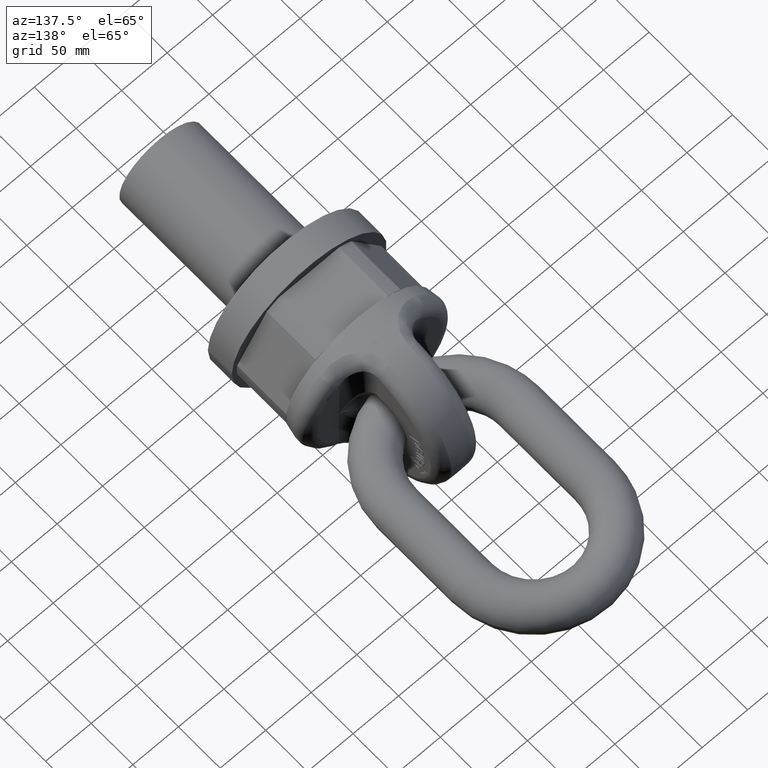
[diagram: clean part render]
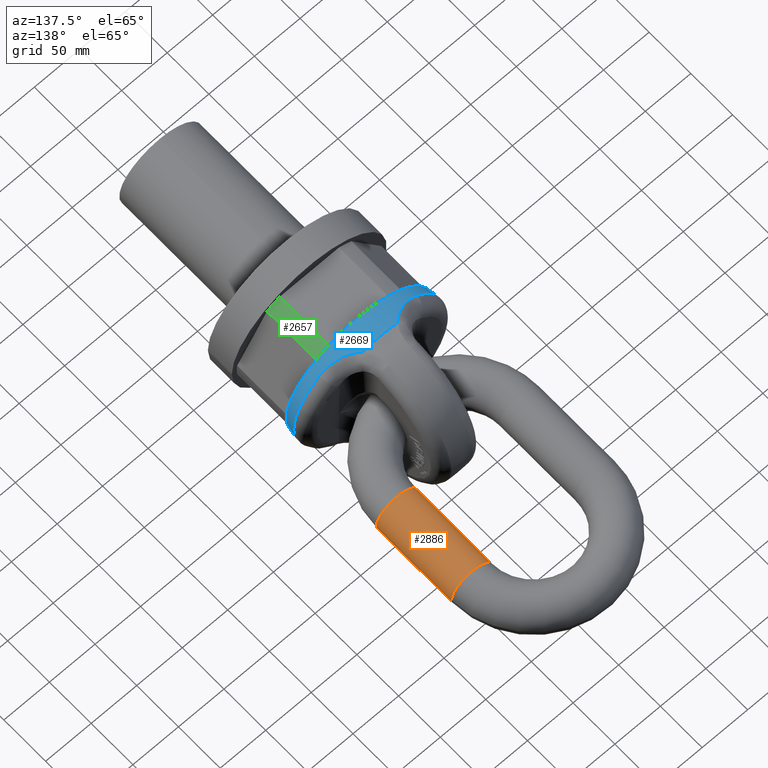
[diagram: same view with three faces highlighted in distinct colors, each labeled with its STEP entity id]
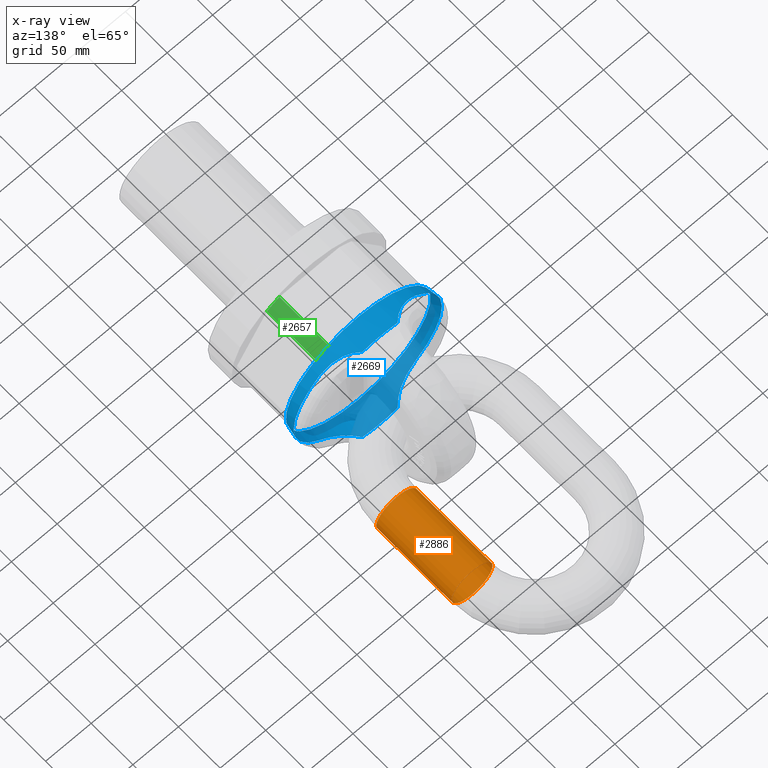
[diagram: x-ray of the same camera — body ghosted, the three highlighted faces saturated]
A machine part, auxiliary view with three faces highlighted in distinct colors.
The next image is the same camera in x-ray (body ghosted, the three faces saturated) — at least one of them is partly hidden behind the body in this view.
Their STEP definitions:

[orange] entity #2886 — the highlighted cylindrical surface (bore or boss wall) has radius 22.5 mm, axis along (0, 1, 0).
#2040=CYLINDRICAL_SURFACE('',#5807,22.5);
#2886=ADVANCED_FACE('',(#3061,#3062),#2040,.T.);
#3061=FACE_BOUND('',#3347,.T.);
#3062=FACE_BOUND('',#3348,.T.);
#3347=EDGE_LOOP('',(#4539));
#3348=EDGE_LOOP('',(#4540));
#4539=ORIENTED_EDGE('',*,*,#5535,.F.);
#4540=ORIENTED_EDGE('',*,*,#5536,.T.);
#4939=VERTEX_POINT('',#9879);
#4940=VERTEX_POINT('',#9882);
#5535=EDGE_CURVE('',#4939,#4939,#5601,.T.);
#5536=EDGE_CURVE('',#4940,#4940,#5602,.T.);
#5601=CIRCLE('',#5804,22.5);
#5602=CIRCLE('',#5806,22.5);
#5804=AXIS2_PLACEMENT_3D('',#9878,#6559,#6560);
#5806=AXIS2_PLACEMENT_3D('',#9881,#6563,#6564);
#5807=AXIS2_PLACEMENT_3D('',#9883,#6565,#6566);
#6559=DIRECTION('',(-3.15796771448933E-16,-1.,0.));
#6560=DIRECTION('',(1.,0.,0.));
#6563=DIRECTION('',(-3.15796771448933E-16,-1.,0.));
#6564=DIRECTION('',(1.,0.,0.));
#6565=DIRECTION('',(3.15796771448933E-16,1.,0.));
#6566=DIRECTION('',(-1.,0.,0.));
#9878=CARTESIAN_POINT('',(67.5,208.,0.));
#9879=CARTESIAN_POINT('',(90.,208.,0.));
#9881=CARTESIAN_POINT('',(67.5000000000001,298.,0.));
#9882=CARTESIAN_POINT('',(90.0000000000001,298.,0.));
#9883=CARTESIAN_POINT('',(67.5,208.,0.));

[blue] entity #2669 — the highlighted conical surface has half-angle 9.411 deg.
#357=B_SPLINE_CURVE_WITH_KNOTS('',3,(#7036,#7037,#7038,#7039,#7040,#7041,
#7042,#7043,#7044,#7045),.UNSPECIFIED.,.F.,.F.,(4,2,2,2,4),(0.,0.25,0.5,
0.75,1.),.UNSPECIFIED.);
#358=B_SPLINE_CURVE_WITH_KNOTS('',3,(#7050,#7051,#7052,#7053,#7054,#7055,
#7056,#7057,#7058,#7059),.UNSPECIFIED.,.F.,.F.,(4,2,2,2,4),(0.,0.25,0.5,
0.75,1.),.UNSPECIFIED.);
#359=B_SPLINE_CURVE_WITH_KNOTS('',3,(#7063,#7064,#7065,#7066,#7067,#7068,
#7069,#7070,#7071,#7072),.UNSPECIFIED.,.F.,.F.,(4,2,2,2,4),(0.,0.25,0.5,
0.75,1.),.UNSPECIFIED.);
#360=B_SPLINE_CURVE_WITH_KNOTS('',3,(#7076,#7077,#7078,#7079,#7080,#7081,
#7082,#7083,#7084,#7085),.UNSPECIFIED.,.F.,.F.,(4,2,2,2,4),(0.,0.25,0.5,
0.75,1.),.UNSPECIFIED.);
#1795=CONICAL_SURFACE('',#5657,79.5299995808709,9.41056020832929);
#2669=ADVANCED_FACE('',(#3016,#3017),#1795,.T.);
#3016=FACE_BOUND('',#3104,.T.);
#3017=FACE_BOUND('',#3105,.T.);
#3104=EDGE_LOOP('',(#3521));
#3105=EDGE_LOOP('',(#3522,#3523,#3524,#3525,#3526,#3527,#3528,#3529));
#3521=ORIENTED_EDGE('',*,*,#5066,.F.);
#3522=ORIENTED_EDGE('',*,*,#5067,.T.);
#3523=ORIENTED_EDGE('',*,*,#5068,.T.);
#3524=ORIENTED_EDGE('',*,*,#5069,.T.);
#3525=ORIENTED_EDGE('',*,*,#5070,.T.);
#3526=ORIENTED_EDGE('',*,*,#5071,.T.);
#3527=ORIENTED_EDGE('',*,*,#5072,.T.);
#3528=ORIENTED_EDGE('',*,*,#5073,.T.);
#3529=ORIENTED_EDGE('',*,*,#5074,.T.);
#4653=VERTEX_POINT('',#7035);
#4654=VERTEX_POINT('',#7046);
#4655=VERTEX_POINT('',#7047);
#4656=VERTEX_POINT('',#7049);
#4657=VERTEX_POINT('',#7060);
#4658=VERTEX_POINT('',#7062);
#4659=VERTEX_POINT('',#7073);
#4660=VERTEX_POINT('',#7075);
#4661=VERTEX_POINT('',#7086);
#5066=EDGE_CURVE('',#4653,#4653,#5561,.T.);
#5067=EDGE_CURVE('',#4654,#4655,#357,.T.);
#5068=EDGE_CURVE('',#4655,#4656,#5562,.T.);
#5069=EDGE_CURVE('',#4656,#4657,#358,.T.);
#5070=EDGE_CURVE('',#4657,#4658,#5563,.T.);
#5071=EDGE_CURVE('',#4658,#4659,#359,.T.);
#5072=EDGE_CURVE('',#4659,#4660,#5564,.T.);
#5073=EDGE_CURVE('',#4660,#4661,#360,.T.);
#5074=EDGE_CURVE('',#4661,#4654,#5565,.T.);
#5561=CIRCLE('',#5652,79.5299995808709);
#5562=CIRCLE('',#5653,83.8560735849427);
#5563=CIRCLE('',#5654,81.4287227618614);
#5564=CIRCLE('',#5655,83.8560735849427);
#5565=CIRCLE('',#5656,81.4287227618614);
#5652=AXIS2_PLACEMENT_3D('',#7034,#5967,#5968);
#5653=AXIS2_PLACEMENT_3D('',#7048,#5969,#5970);
#5654=AXIS2_PLACEMENT_3D('',#7061,#5971,#5972);
#5655=AXIS2_PLACEMENT_3D('',#7074,#5973,#5974);
#5656=AXIS2_PLACEMENT_3D('',#7087,#5975,#5976);
#5657=AXIS2_PLACEMENT_3D('',#7088,#5977,#5978);
#5967=DIRECTION('',(0.,-1.,0.));
#5968=DIRECTION('',(0.,0.,-1.));
#5969=DIRECTION('',(0.,-1.,0.));
#5970=DIRECTION('',(0.,0.,-1.));
#5971=DIRECTION('',(2.22044604925031E-16,-1.,0.));
#5972=DIRECTION('',(1.,1.70428656340344E-16,0.));
#5973=DIRECTION('',(0.,-1.,0.));
#5974=DIRECTION('',(0.,0.,-1.));
#5975=DIRECTION('',(-2.22044604925031E-16,-1.,-5.2023068723207E-31));
#5976=DIRECTION('',(-1.,1.70428656340344E-16,-2.34291072916505E-15));
#5977=DIRECTION('',(0.,1.,0.));
#5978=DIRECTION('',(0.,3.39492421331075E-16,1.));
#7034=CARTESIAN_POINT('',(0.,88.,0.));
#7035=CARTESIAN_POINT('',(0.,88.,-79.5299995808709));
#7036=CARTESIAN_POINT('',(-53.0311782348249,99.4561525627352,-61.7926454010048));
#7037=CARTESIAN_POINT('',(-50.2915803342574,99.4561525627352,-64.1438006819273));
#7038=CARTESIAN_POINT('',(-47.4498870520396,99.685371766462,-66.3168204155845));
#7039=CARTESIAN_POINT('',(-41.5993527415988,100.72746128075,-70.3354607524262));
#7040=CARTESIAN_POINT('',(-38.5772171287843,101.550105876451,-72.1837020846384));
#7041=CARTESIAN_POINT('',(-32.6594419392754,103.872872415963,-75.4662854746882));
#7042=CARTESIAN_POINT('',(-29.7016012291098,105.398714454132,-76.9349842280731));
#7043=CARTESIAN_POINT('',(-24.1801032292451,109.192629330798,-79.5018100040834));
#7044=CARTESIAN_POINT('',(-21.6270886623688,111.437769483635,-80.5983860643944));
#7045=CARTESIAN_POINT('',(-19.3766860398297,114.101837426599,-81.5866724115967));
#7046=CARTESIAN_POINT('',(-53.0311782348249,99.4561525627352,-61.7926454010048));
#7047=CARTESIAN_POINT('',(-19.3766860398297,114.101837426599,-81.5866724115967));
#7048=CARTESIAN_POINT('',(0.,114.101837426599,0.));
#7049=CARTESIAN_POINT('',(19.3766860398299,114.101837426599,-81.5866724115967));
#7050=CARTESIAN_POINT('',(19.3766860398299,114.101837426599,-81.5866724115967));
#7051=CARTESIAN_POINT('',(21.6283781201483,111.436242999841,-80.5978197863844));
#7052=CARTESIAN_POINT('',(24.2253527224758,109.154343316455,-79.4820490104423));
#7053=CARTESIAN_POINT('',(29.7763963306913,105.354673195505,-76.8989112328579));
#7054=CARTESIAN_POINT('',(32.6758694393554,103.865213788061,-75.4577326038359));
#7055=CARTESIAN_POINT('',(38.5908230937063,101.545982331194,-72.1755925779134));
#7056=CARTESIAN_POINT('',(41.6201128180055,100.723015460115,-70.3217918618348));
#7057=CARTESIAN_POINT('',(47.4527084914976,99.6856203090327,-66.3142891388219));
#7058=CARTESIAN_POINT('',(50.2909280959429,99.4561525627352,-64.1443604405537));
#7059=CARTESIAN_POINT('',(53.031178234825,99.4561525627352,-61.7926454010047));
#7060=CARTESIAN_POINT('',(53.031178234825,99.4561525627352,-61.7926454010047));
#7061=CARTESIAN_POINT('',(0.,99.4561525627352,0.));
#7062=CARTESIAN_POINT('',(53.031178234825,99.4561525627352,61.7926454010047));
#7063=CARTESIAN_POINT('',(53.031178234825,99.4561525627352,61.7926454010047));
#7064=CARTESIAN_POINT('',(50.2915803342576,99.4561525627352,64.1438006819273));
#7065=CARTESIAN_POINT('',(47.4498870520398,99.6853717664619,66.3168204155844));
#7066=CARTESIAN_POINT('',(41.599352741599,100.72746128075,70.3354607524261));
#7067=CARTESIAN_POINT('',(38.5772171287845,101.550105876451,72.1837020846383));
#7068=CARTESIAN_POINT('',(32.6594419392756,103.872872415963,75.4662854746881));
#7069=CARTESIAN_POINT('',(29.70160122911,105.398714454132,76.934984228073));
#7070=CARTESIAN_POINT('',(24.1801032292453,109.192629330798,79.5018100040834));
#7071=CARTESIAN_POINT('',(21.627088662369,111.437769483635,80.5983860643943));
#7072=CARTESIAN_POINT('',(19.3766860398299,114.101837426599,81.5866724115967));
#7073=CARTESIAN_POINT('',(19.3766860398299,114.101837426599,81.5866724115967));
#7074=CARTESIAN_POINT('',(0.,114.101837426599,0.));
#7075=CARTESIAN_POINT('',(-19.3766860398301,114.101837426599,81.5866724115966));
#7076=CARTESIAN_POINT('',(-19.3766860398301,114.101837426599,81.5866724115966));
#7077=CARTESIAN_POINT('',(-21.6283781201485,111.436242999841,80.5978197863844));
#7078=CARTESIAN_POINT('',(-24.225352722476,109.154343316455,79.4820490104422));
#7079=CARTESIAN_POINT('',(-29.7763963306915,105.354673195505,76.8989112328578));
#7080=CARTESIAN_POINT('',(-32.6758694393556,103.865213788061,75.4577326038358));
#7081=CARTESIAN_POINT('',(-38.5908230937065,101.545982331194,72.1755925779133));
#7082=CARTESIAN_POINT('',(-41.6201128180057,100.723015460115,70.3217918618347));
#7083=CARTESIAN_POINT('',(-47.4527084914978,99.6856203090327,66.3142891388218));
#7084=CARTESIAN_POINT('',(-50.2909280959431,99.4561525627352,64.1443604405536));
#7085=CARTESIAN_POINT('',(-53.0311782348252,99.4561525627352,61.7926454010046));
#7086=CARTESIAN_POINT('',(-53.0311782348252,99.4561525627352,61.7926454010046));
#7087=CARTESIAN_POINT('',(0.,99.4561525627352,0.));
#7088=CARTESIAN_POINT('',(0.,88.,0.));

[green] entity #2657 — the highlighted cylindrical surface (partial cylindrical patch) has radius 79.53 mm, axis along (-0, 1, 0).
#1815=FACE_OUTER_BOUND('',#3080,.T.);
#2023=CYLINDRICAL_SURFACE('',#5632,79.5299995808709);
#2059=LINE('',#6629,#2315);
#2063=LINE('',#6637,#2319);
#2315=VECTOR('',#5863,1.);
#2319=VECTOR('',#5869,1.);
#2657=ADVANCED_FACE('',(#1815),#2023,.T.);
#3080=EDGE_LOOP('',(#3412,#3413,#3414,#3415));
#3412=ORIENTED_EDGE('',*,*,#4945,.F.);
#3413=ORIENTED_EDGE('',*,*,#4969,.T.);
#3414=ORIENTED_EDGE('',*,*,#4978,.T.);
#3415=ORIENTED_EDGE('',*,*,#4973,.T.);
#4546=VERTEX_POINT('',#6578);
#4548=VERTEX_POINT('',#6581);
#4567=VERTEX_POINT('',#6630);
#4570=VERTEX_POINT('',#6638);
#4945=EDGE_CURVE('',#4546,#4548,#5540,.T.);
#4969=EDGE_CURVE('',#4546,#4567,#2059,.T.);
#4973=EDGE_CURVE('',#4570,#4548,#2063,.T.);
#4978=EDGE_CURVE('',#4567,#4570,#5550,.T.);
#5540=CIRCLE('',#5608,79.5299995808709);
#5550=CIRCLE('',#5626,79.5299995808709);
#5608=AXIS2_PLACEMENT_3D('',#6580,#5820,#5821);
#5626=AXIS2_PLACEMENT_3D('',#6644,#5879,#5880);
#5632=AXIS2_PLACEMENT_3D('',#6650,#5891,#5892);
#5820=DIRECTION('',(5.39262084851817E-17,-1.,0.));
#5821=DIRECTION('',(-1.,-4.36243803626035E-17,0.));
#5863=DIRECTION('',(-2.4492935982947E-17,1.,0.));
#5869=DIRECTION('',(2.4492935982947E-17,-1.,0.));
#5879=DIRECTION('',(0.,-1.,0.));
#5880=DIRECTION('',(0.,0.,-1.));
#5891=DIRECTION('',(-2.4492935982947E-17,1.,0.));
#5892=DIRECTION('',(-1.,-2.4492935982947E-17,0.));
#6578=CARTESIAN_POINT('',(46.4408114203888,29.3333333333333,64.5621550751616));
#6580=CARTESIAN_POINT('',(-7.1845945549978E-16,29.3333333333333,0.));
#6581=CARTESIAN_POINT('',(32.692060707966,29.3333333333333,72.5));
#6629=CARTESIAN_POINT('',(46.4408114203888,-4.00362275035415E-16,64.5621550751616));
#6630=CARTESIAN_POINT('',(46.4408114203888,88.,64.5621550751616));
#6637=CARTESIAN_POINT('',(32.692060707966,8.00724550070829E-16,72.5));
#6638=CARTESIAN_POINT('',(32.692060707966,88.,72.5));
#6644=CARTESIAN_POINT('',(-2.15537836649934E-15,88.,0.));
#6650=CARTESIAN_POINT('',(0.,0.,0.));